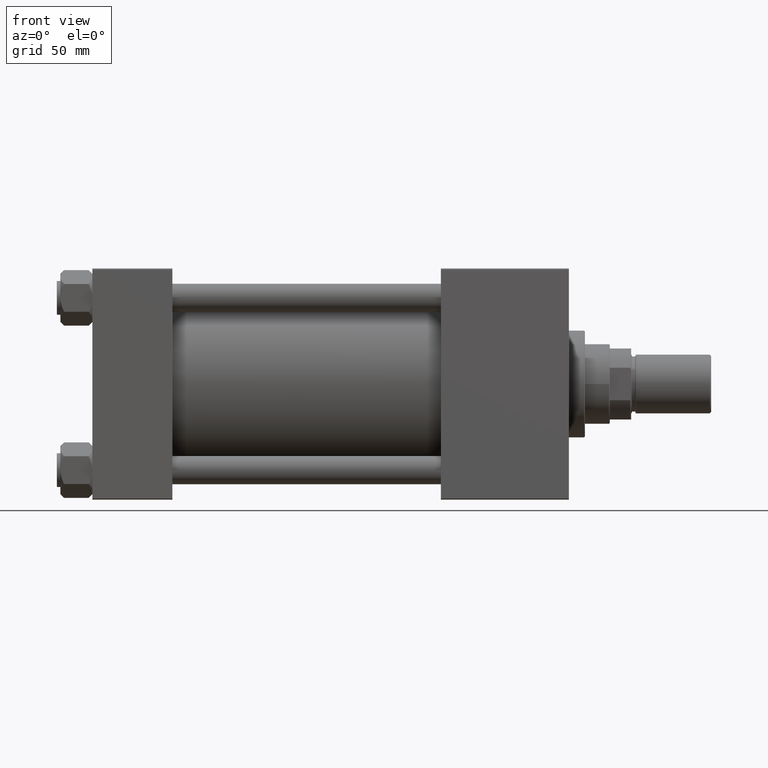
[diagram: clean part render]
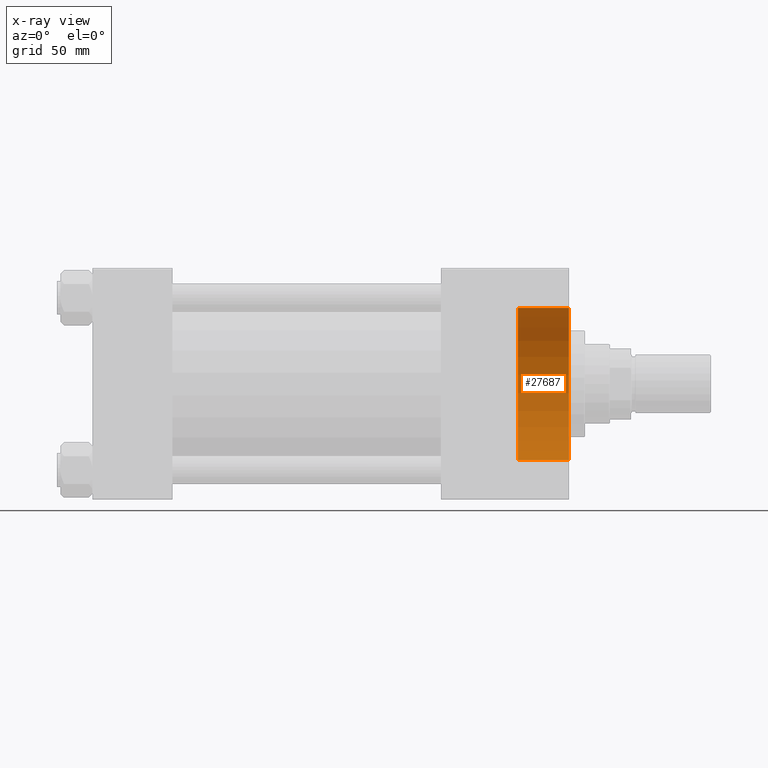
[diagram: x-ray — body ghosted, one internal face saturated and labeled with its STEP entity id]
A machine part, front view, then the same camera in x-ray: the body is ghosted and one INTERNAL B-rep face — a face not visible from any outside direction — is saturated and labeled: STEP entity #27687.
In plain terms, the highlighted cylindrical surface (partial cylindrical patch) has radius 42.75 mm, axis along (-1, -0, -0).
Its self-contained STEP definition (entity closure, byte-faithful):
#803 = DIRECTION ( 'NONE',  ( 0.000000000000000000, 0.000000000000000000, 1.000000000000000000 ) ) ;
#1756 = CARTESIAN_POINT ( 'NONE',  ( -42.75000000000000000, 0.000000000000000000, 28.69999999999999929 ) ) ;
#2463 = VERTEX_POINT ( 'NONE', #49344 ) ;
#8324 = CARTESIAN_POINT ( 'NONE',  ( 0.000000000000000000, 0.000000000000000000, 0.000000000000000000 ) ) ;
#11082 = ORIENTED_EDGE ( 'NONE', *, *, #12293, .F. ) ;
#12293 = EDGE_CURVE ( 'NONE', #26608, #2463, #37268, .T. ) ;
#13169 = CARTESIAN_POINT ( 'NONE',  ( -42.75000000000000000, 0.000000000000000000, 28.69999999999999929 ) ) ;
#13912 = CARTESIAN_POINT ( 'NONE',  ( 0.000000000000000000, 0.000000000000000000, 28.69999999999999929 ) ) ;
#14390 = VECTOR ( 'NONE', #38997, 1000.000000000000000 ) ;
#16881 = VERTEX_POINT ( 'NONE', #28767 ) ;
#16942 = AXIS2_PLACEMENT_3D ( 'NONE', #28905, #17743, #24746 ) ;
#17523 = DIRECTION ( 'NONE',  ( -1.000000000000000000, 0.000000000000000000, 0.000000000000000000 ) ) ;
#17743 = DIRECTION ( 'NONE',  ( 0.000000000000000000, 0.000000000000000000, 1.000000000000000000 ) ) ;
#21415 = CYLINDRICAL_SURFACE ( 'NONE', #45218, 42.75000000000000000 ) ;
#21920 = CARTESIAN_POINT ( 'NONE',  ( 42.75000000000000000, 5.235365066354935472E-15, 0.000000000000000000 ) ) ;
#22844 = VERTEX_POINT ( 'NONE', #21920 ) ;
#24746 = DIRECTION ( 'NONE',  ( 1.000000000000000000, 0.000000000000000000, 0.000000000000000000 ) ) ;
#24947 = EDGE_CURVE ( 'NONE', #16881, #26608, #29374, .T. ) ;
#26299 = DIRECTION ( 'NONE',  ( -0.000000000000000000, -0.000000000000000000, -1.000000000000000000 ) ) ;
#26608 = VERTEX_POINT ( 'NONE', #13169 ) ;
#27042 = ORIENTED_EDGE ( 'NONE', *, *, #24947, .F. ) ;
#27687 = ADVANCED_FACE ( 'NONE', ( #45031 ), #21415, .T. ) ;
#28767 = CARTESIAN_POINT ( 'NONE',  ( 42.75000000000000000, 5.235365066354935472E-15, 28.69999999999999929 ) ) ;
#28905 = CARTESIAN_POINT ( 'NONE',  ( 0.000000000000000000, 0.000000000000000000, 28.69999999999999929 ) ) ;
#29374 = CIRCLE ( 'NONE', #16942, 42.75000000000000000 ) ;
#31982 = CARTESIAN_POINT ( 'NONE',  ( 42.75000000000000000, 5.235365066354935472E-15, 28.69999999999999929 ) ) ;
#35620 = LINE ( 'NONE', #31982, #14390 ) ;
#36176 = EDGE_LOOP ( 'NONE', ( #27042, #42727, #46238, #11082 ) ) ;
#37245 = DIRECTION ( 'NONE',  ( -0.000000000000000000, -0.000000000000000000, -1.000000000000000000 ) ) ;
#37268 = LINE ( 'NONE', #1756, #43994 ) ;
#38997 = DIRECTION ( 'NONE',  ( -0.000000000000000000, -0.000000000000000000, -1.000000000000000000 ) ) ;
#39049 = AXIS2_PLACEMENT_3D ( 'NONE', #8324, #803, #40726 ) ;
#40726 = DIRECTION ( 'NONE',  ( 1.000000000000000000, 0.000000000000000000, 0.000000000000000000 ) ) ;
#40996 = EDGE_CURVE ( 'NONE', #22844, #2463, #48962, .T. ) ;
#42727 = ORIENTED_EDGE ( 'NONE', *, *, #45972, .T. ) ;
#43994 = VECTOR ( 'NONE', #26299, 1000.000000000000000 ) ;
#45031 = FACE_OUTER_BOUND ( 'NONE', #36176, .T. ) ;
#45218 = AXIS2_PLACEMENT_3D ( 'NONE', #13912, #37245, #17523 ) ;
#45972 = EDGE_CURVE ( 'NONE', #16881, #22844, #35620, .T. ) ;
#46238 = ORIENTED_EDGE ( 'NONE', *, *, #40996, .T. ) ;
#48962 = CIRCLE ( 'NONE', #39049, 42.75000000000000000 ) ;
#49344 = CARTESIAN_POINT ( 'NONE',  ( -42.75000000000000000, 0.000000000000000000, 0.000000000000000000 ) ) ;